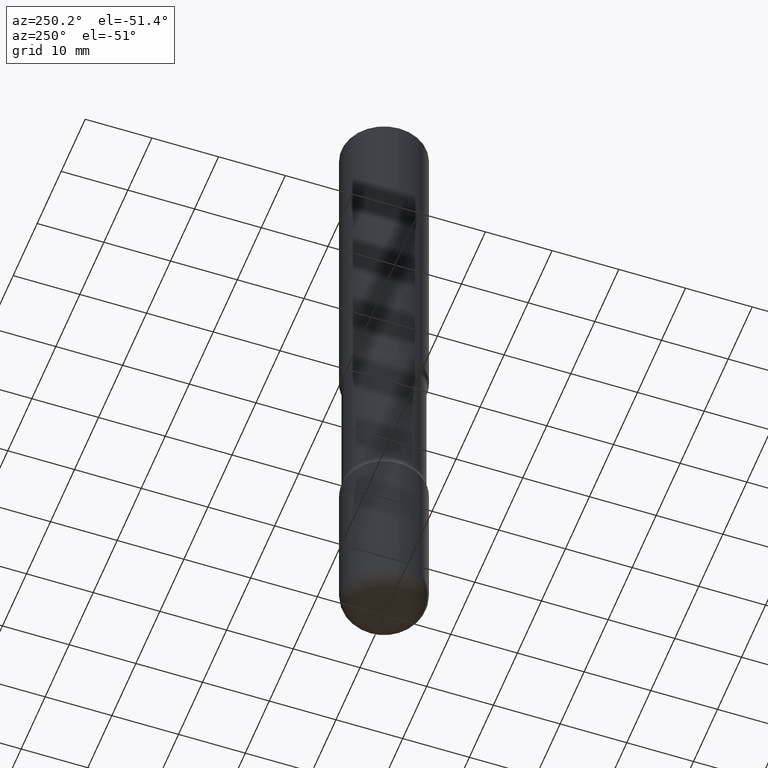
[diagram: clean part render]
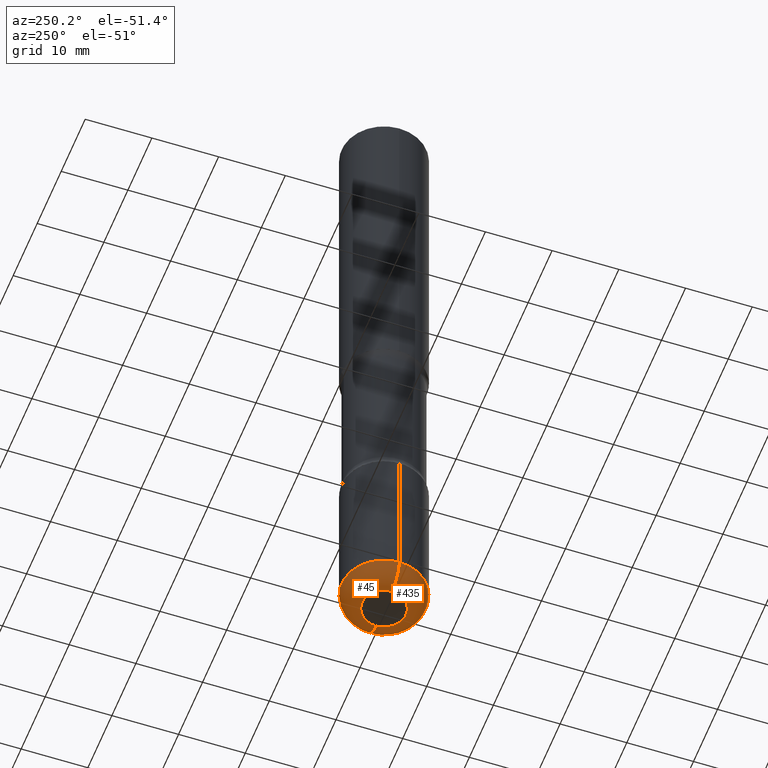
[diagram: same view with one multi-face feature highlighted, each face labeled with its STEP entity id]
A machine part, auxiliary view. The highlighted faces form ONE feature: a constant-radius fillet chain: 2 tangent blend faces with common blend radius 3.048 mm. The faces share edges in the B-rep.
Their STEP definitions:
[1] entity #435 (Torus):
#1 = CARTESIAN_POINT ( 'NONE',  ( -0.2500000000000003331, -1.177059075531115523E-14, -3.880000000000000782 ) ) ;
#7 = AXIS2_PLACEMENT_3D ( 'NONE', #484, #232, #521 ) ;
#24 = CARTESIAN_POINT ( 'NONE',  ( 0.2500000000000003331, -1.529268826413297711E-14, -3.880000000000000782 ) ) ;
#40 = CARTESIAN_POINT ( 'NONE',  ( 9.488418967998331206E-29, -1.354694759471140727E-14, -3.880000000000000782 ) ) ;
#57 = EDGE_CURVE ( 'NONE', #145, #500, #501, .T. ) ;
#90 = CARTESIAN_POINT ( 'NONE',  ( 9.781875224740547508E-29, -1.396592535537258391E-14, -4.000000000000000888 ) ) ;
#110 = AXIS2_PLACEMENT_3D ( 'NONE', #169, #395, #258 ) ;
#120 = EDGE_CURVE ( 'NONE', #500, #359, #325, .T. ) ;
#140 = AXIS2_PLACEMENT_3D ( 'NONE', #198, #250, #243 ) ;
#145 = VERTEX_POINT ( 'NONE', #362 ) ;
#169 = CARTESIAN_POINT ( 'NONE',  ( 9.488418967998331206E-29, -1.354694759471140727E-14, -3.880000000000000782 ) ) ;
#191 = CIRCLE ( 'NONE', #140, 0.1199999999999999262 ) ;
#198 = CARTESIAN_POINT ( 'NONE',  ( -0.1300000000000003375, -1.262324203822327621E-14, -3.880000000000000782 ) ) ;
#209 = VERTEX_POINT ( 'NONE', #1 ) ;
#232 = DIRECTION ( 'NONE',  ( -6.982962677686266711E-15, -1.000000000000000000, 3.491481338843145583E-15 ) ) ;
#236 = AXIS2_PLACEMENT_3D ( 'NONE', #90, #444, #532 ) ;
#243 = DIRECTION ( 'NONE',  ( -1.000000000000000000, 7.105427357601011325E-15, 0.000000000000000000 ) ) ;
#250 = DIRECTION ( 'NONE',  ( 7.105427357601001859E-15, 1.000000000000000000, -3.491481338843145583E-15 ) ) ;
#258 = DIRECTION ( 'NONE',  ( 1.000000000000000000, -6.982962677686267499E-15, 0.000000000000000000 ) ) ;
#262 = DIRECTION ( 'NONE',  ( -2.445468806185136597E-29, 3.491481338843145583E-15, 1.000000000000000000 ) ) ;
#265 = DIRECTION ( 'NONE',  ( 1.000000000000000000, -6.982962677686270655E-15, 4.883557194083114583E-29 ) ) ;
#284 = AXIS2_PLACEMENT_3D ( 'NONE', #40, #262, #265 ) ;
#286 = ORIENTED_EDGE ( 'NONE', *, *, #460, .F. ) ;
#294 = ORIENTED_EDGE ( 'NONE', *, *, #57, .T. ) ;
#302 = EDGE_CURVE ( 'NONE', #145, #209, #191, .T. ) ;
#325 = CIRCLE ( 'NONE', #7, 0.1199999999999999262 ) ;
#333 = ORIENTED_EDGE ( 'NONE', *, *, #302, .F. ) ;
#357 = CIRCLE ( 'NONE', #110, 0.2500000000000003886 ) ;
#359 = VERTEX_POINT ( 'NONE', #24 ) ;
#362 = CARTESIAN_POINT ( 'NONE',  ( -0.1300000000000003375, -1.240640527709780404E-14, -4.000000000000000888 ) ) ;
#378 = EDGE_LOOP ( 'NONE', ( #333, #294, #434, #286 ) ) ;
#395 = DIRECTION ( 'NONE',  ( -2.445468806185136597E-29, 3.491481338843145583E-15, 1.000000000000000000 ) ) ;
#430 = CARTESIAN_POINT ( 'NONE',  ( 0.1300000000000003375, -1.487371050347180047E-14, -4.000000000000000888 ) ) ;
#434 = ORIENTED_EDGE ( 'NONE', *, *, #120, .T. ) ;
#435 = ADVANCED_FACE ( 'NONE', ( #518 ), #491, .T. ) ;
#444 = DIRECTION ( 'NONE',  ( -2.445468806185136597E-29, 3.491481338843145583E-15, 1.000000000000000000 ) ) ;
#460 = EDGE_CURVE ( 'NONE', #209, #359, #357, .T. ) ;
#484 = CARTESIAN_POINT ( 'NONE',  ( 0.1300000000000003375, -1.445473274281062700E-14, -3.880000000000000782 ) ) ;
#491 = TOROIDAL_SURFACE ( 'NONE', #284, 0.1300000000000003375, 0.1199999999999999539 ) ;
#500 = VERTEX_POINT ( 'NONE', #430 ) ;
#501 = CIRCLE ( 'NONE', #236, 0.1300000000000003375 ) ;
#518 = FACE_OUTER_BOUND ( 'NONE', #378, .T. ) ;
#521 = DIRECTION ( 'NONE',  ( 1.000000000000000000, -6.982962677686272233E-15, 0.000000000000000000 ) ) ;
#532 = DIRECTION ( 'NONE',  ( 1.000000000000000000, -6.982962677686269077E-15, 0.000000000000000000 ) ) ;
[2] entity #45 (Torus):
#1 = CARTESIAN_POINT ( 'NONE',  ( -0.2500000000000003331, -1.177059075531115523E-14, -3.880000000000000782 ) ) ;
#2 = CIRCLE ( 'NONE', #268, 0.2500000000000003886 ) ;
#7 = AXIS2_PLACEMENT_3D ( 'NONE', #484, #232, #521 ) ;
#24 = CARTESIAN_POINT ( 'NONE',  ( 0.2500000000000003331, -1.529268826413297711E-14, -3.880000000000000782 ) ) ;
#45 = ADVANCED_FACE ( 'NONE', ( #299 ), #133, .T. ) ;
#103 = ORIENTED_EDGE ( 'NONE', *, *, #277, .T. ) ;
#120 = EDGE_CURVE ( 'NONE', #500, #359, #325, .T. ) ;
#133 = TOROIDAL_SURFACE ( 'NONE', #523, 0.1300000000000003375, 0.1199999999999999539 ) ;
#140 = AXIS2_PLACEMENT_3D ( 'NONE', #198, #250, #243 ) ;
#145 = VERTEX_POINT ( 'NONE', #362 ) ;
#149 = EDGE_CURVE ( 'NONE', #359, #209, #2, .T. ) ;
#174 = DIRECTION ( 'NONE',  ( 1.000000000000000000, -6.982962677686270655E-15, 4.883557194083114583E-29 ) ) ;
#176 = CIRCLE ( 'NONE', #440, 0.1300000000000003375 ) ;
#191 = CIRCLE ( 'NONE', #140, 0.1199999999999999262 ) ;
#198 = CARTESIAN_POINT ( 'NONE',  ( -0.1300000000000003375, -1.262324203822327621E-14, -3.880000000000000782 ) ) ;
#209 = VERTEX_POINT ( 'NONE', #1 ) ;
#232 = DIRECTION ( 'NONE',  ( -6.982962677686266711E-15, -1.000000000000000000, 3.491481338843145583E-15 ) ) ;
#243 = DIRECTION ( 'NONE',  ( -1.000000000000000000, 7.105427357601011325E-15, 0.000000000000000000 ) ) ;
#246 = DIRECTION ( 'NONE',  ( 1.000000000000000000, -6.982962677686269077E-15, 0.000000000000000000 ) ) ;
#250 = DIRECTION ( 'NONE',  ( 7.105427357601001859E-15, 1.000000000000000000, -3.491481338843145583E-15 ) ) ;
#261 = CARTESIAN_POINT ( 'NONE',  ( 9.488418967998331206E-29, -1.354694759471140727E-14, -3.880000000000000782 ) ) ;
#268 = AXIS2_PLACEMENT_3D ( 'NONE', #526, #454, #451 ) ;
#277 = EDGE_CURVE ( 'NONE', #500, #145, #176, .T. ) ;
#299 = FACE_OUTER_BOUND ( 'NONE', #382, .T. ) ;
#302 = EDGE_CURVE ( 'NONE', #145, #209, #191, .T. ) ;
#325 = CIRCLE ( 'NONE', #7, 0.1199999999999999262 ) ;
#335 = DIRECTION ( 'NONE',  ( -2.445468806185136597E-29, 3.491481338843145583E-15, 1.000000000000000000 ) ) ;
#359 = VERTEX_POINT ( 'NONE', #24 ) ;
#362 = CARTESIAN_POINT ( 'NONE',  ( -0.1300000000000003375, -1.240640527709780404E-14, -4.000000000000000888 ) ) ;
#369 = CARTESIAN_POINT ( 'NONE',  ( 9.781875224740547508E-29, -1.396592535537258391E-14, -4.000000000000000888 ) ) ;
#373 = ORIENTED_EDGE ( 'NONE', *, *, #120, .F. ) ;
#382 = EDGE_LOOP ( 'NONE', ( #103, #511, #478, #373 ) ) ;
#390 = DIRECTION ( 'NONE',  ( -2.445468806185136597E-29, 3.491481338843145583E-15, 1.000000000000000000 ) ) ;
#430 = CARTESIAN_POINT ( 'NONE',  ( 0.1300000000000003375, -1.487371050347180047E-14, -4.000000000000000888 ) ) ;
#440 = AXIS2_PLACEMENT_3D ( 'NONE', #369, #335, #246 ) ;
#451 = DIRECTION ( 'NONE',  ( 1.000000000000000000, -6.982962677686267499E-15, 0.000000000000000000 ) ) ;
#454 = DIRECTION ( 'NONE',  ( -2.445468806185136597E-29, 3.491481338843145583E-15, 1.000000000000000000 ) ) ;
#478 = ORIENTED_EDGE ( 'NONE', *, *, #149, .F. ) ;
#484 = CARTESIAN_POINT ( 'NONE',  ( 0.1300000000000003375, -1.445473274281062700E-14, -3.880000000000000782 ) ) ;
#500 = VERTEX_POINT ( 'NONE', #430 ) ;
#511 = ORIENTED_EDGE ( 'NONE', *, *, #302, .T. ) ;
#521 = DIRECTION ( 'NONE',  ( 1.000000000000000000, -6.982962677686272233E-15, 0.000000000000000000 ) ) ;
#523 = AXIS2_PLACEMENT_3D ( 'NONE', #261, #390, #174 ) ;
#526 = CARTESIAN_POINT ( 'NONE',  ( 9.488418967998331206E-29, -1.354694759471140727E-14, -3.880000000000000782 ) ) ;